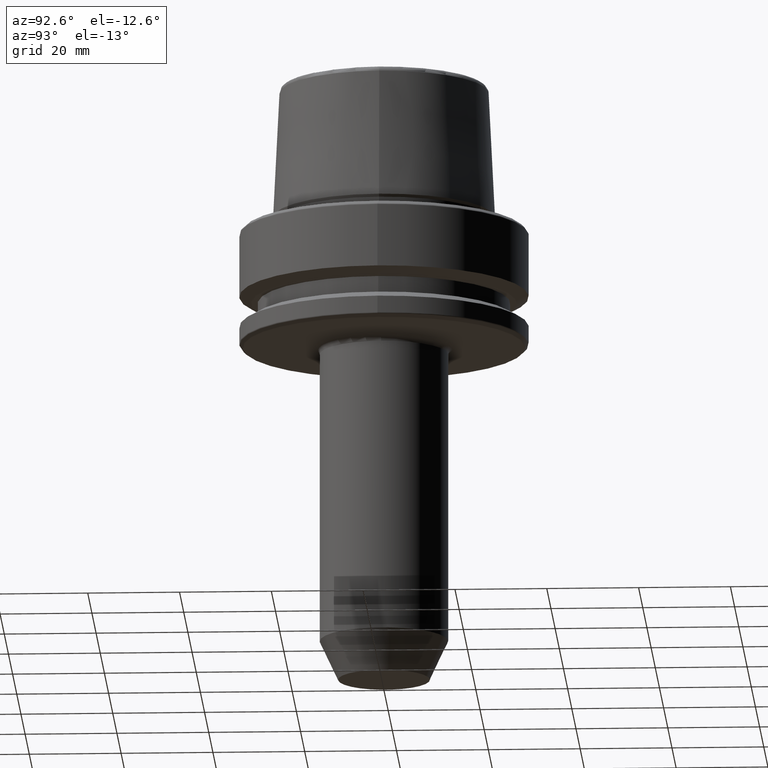
[diagram: clean part render]
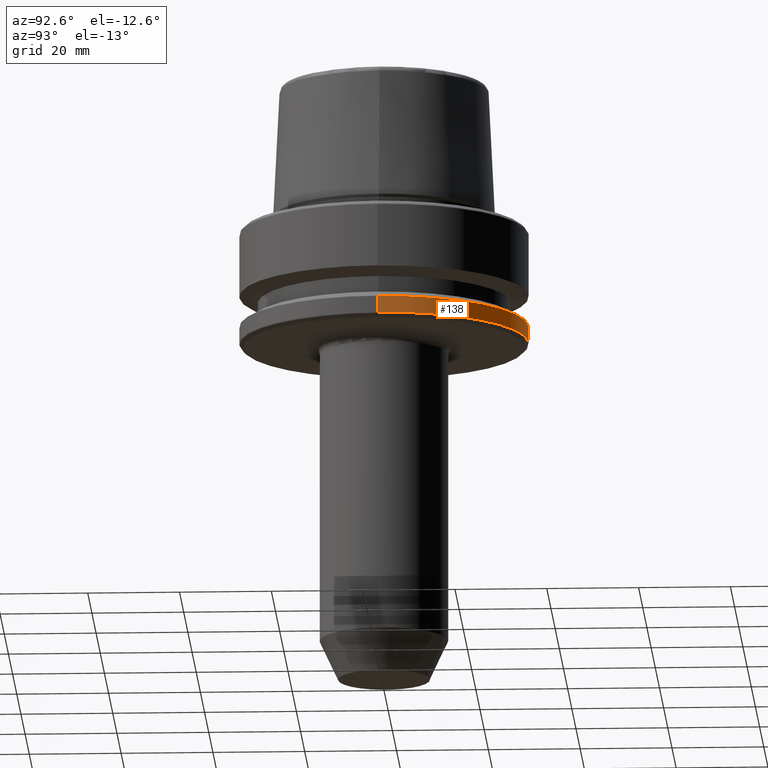
[diagram: same view with one face highlighted and labeled with its STEP entity id]
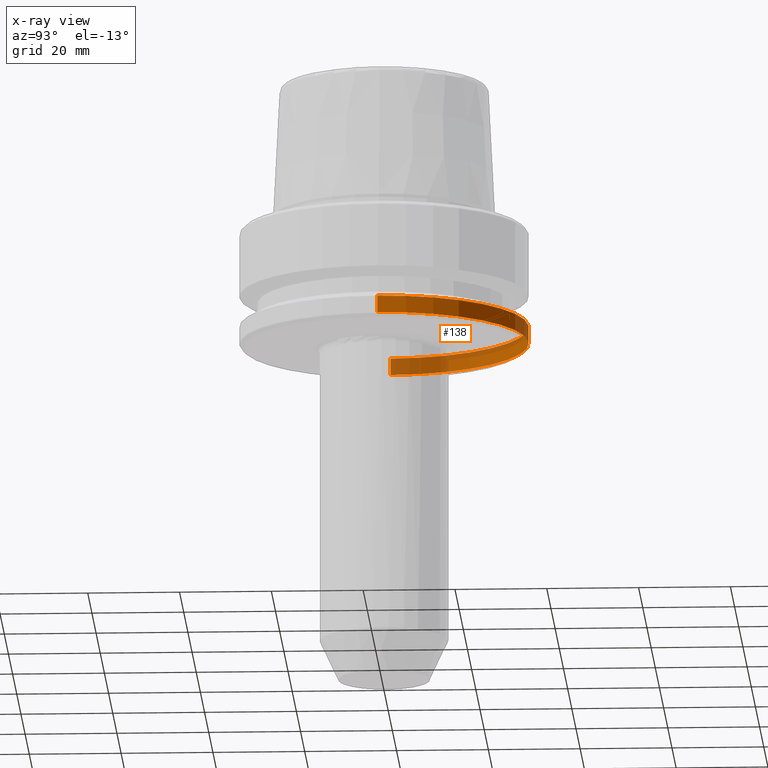
[diagram: x-ray of the same camera — body ghosted, the highlighted face saturated]
A machine part, auxiliary view. The second image highlights one B-rep face of the part: STEP entity #138.
The next image is the same camera in x-ray: the body ghosted, the highlighted face saturated — about 28% of this face is hidden behind the body in this view.
In plain terms, the highlighted cylindrical surface (partial cylindrical patch) has radius 31.5 mm, axis along (-0, -0, 1).
Its self-contained STEP definition (entity closure, byte-faithful):
#88 = CIRCLE ( 'NONE', #879, 31.50000000000000000 ) ;
#138 = ADVANCED_FACE ( 'NONE', ( #923 ), #1051, .T. ) ;
#142 = ORIENTED_EDGE ( 'NONE', *, *, #165, .T. ) ;
#165 = EDGE_CURVE ( 'NONE', #253, #335, #409, .T. ) ;
#183 = ORIENTED_EDGE ( 'NONE', *, *, #1253, .T. ) ;
#253 = VERTEX_POINT ( 'NONE', #318 ) ;
#294 = CARTESIAN_POINT ( 'NONE',  ( -31.50000000000000000, 3.857637417314162700E-015, 78.96908074195309300 ) ) ;
#299 = DIRECTION ( 'NONE',  ( -0.0000000000000000000, -0.0000000000000000000, 1.000000000000000000 ) ) ;
#318 = CARTESIAN_POINT ( 'NONE',  ( -31.50000000000000000, 3.857637417314162700E-015, -25.03431457505077200 ) ) ;
#335 = VERTEX_POINT ( 'NONE', #589 ) ;
#361 = CARTESIAN_POINT ( 'NONE',  ( 31.50000000000000000, 0.0000000000000000000, -25.03431457505077200 ) ) ;
#409 = LINE ( 'NONE', #294, #484 ) ;
#450 = LINE ( 'NONE', #837, #664 ) ;
#471 = AXIS2_PLACEMENT_3D ( 'NONE', #1042, #568, #978 ) ;
#484 = VECTOR ( 'NONE', #527, 1000.000000000000000 ) ;
#500 = DIRECTION ( 'NONE',  ( -0.0000000000000000000, -0.0000000000000000000, 1.000000000000000000 ) ) ;
#527 = DIRECTION ( 'NONE',  ( -0.0000000000000000000, -0.0000000000000000000, 1.000000000000000000 ) ) ;
#568 = DIRECTION ( 'NONE',  ( -0.0000000000000000000, -0.0000000000000000000, 1.000000000000000000 ) ) ;
#576 = EDGE_CURVE ( 'NONE', #1083, #335, #88, .T. ) ;
#589 = CARTESIAN_POINT ( 'NONE',  ( -31.50000000000000000, 0.0000000000000000000, -21.37749907475931700 ) ) ;
#664 = VECTOR ( 'NONE', #939, 1000.000000000000000 ) ;
#779 = CARTESIAN_POINT ( 'NONE',  ( 31.50000000000000000, 3.857637417314162700E-015, -21.37749907475931700 ) ) ;
#786 = CIRCLE ( 'NONE', #1250, 31.50000000000000000 ) ;
#835 = EDGE_CURVE ( 'NONE', #1030, #1083, #450, .T. ) ;
#837 = CARTESIAN_POINT ( 'NONE',  ( 31.50000000000000000, 0.0000000000000000000, 78.96908074195309300 ) ) ;
#849 = ORIENTED_EDGE ( 'NONE', *, *, #576, .F. ) ;
#869 = ORIENTED_EDGE ( 'NONE', *, *, #835, .F. ) ;
#879 = AXIS2_PLACEMENT_3D ( 'NONE', #905, #299, #1003 ) ;
#905 = CARTESIAN_POINT ( 'NONE',  ( 0.0000000000000000000, 0.0000000000000000000, -21.37749907475931700 ) ) ;
#912 = EDGE_LOOP ( 'NONE', ( #183, #142, #849, #869 ) ) ;
#923 = FACE_OUTER_BOUND ( 'NONE', #912, .T. ) ;
#939 = DIRECTION ( 'NONE',  ( -0.0000000000000000000, -0.0000000000000000000, 1.000000000000000000 ) ) ;
#978 = DIRECTION ( 'NONE',  ( 1.000000000000000000, 0.0000000000000000000, 0.0000000000000000000 ) ) ;
#1003 = DIRECTION ( 'NONE',  ( 1.000000000000000000, 0.0000000000000000000, 0.0000000000000000000 ) ) ;
#1030 = VERTEX_POINT ( 'NONE', #361 ) ;
#1042 = CARTESIAN_POINT ( 'NONE',  ( 0.0000000000000000000, 0.0000000000000000000, 78.96908074195309300 ) ) ;
#1051 = CYLINDRICAL_SURFACE ( 'NONE', #471, 31.50000000000000000 ) ;
#1083 = VERTEX_POINT ( 'NONE', #779 ) ;
#1084 = CARTESIAN_POINT ( 'NONE',  ( 0.0000000000000000000, 0.0000000000000000000, -25.03431457505077200 ) ) ;
#1174 = DIRECTION ( 'NONE',  ( 1.000000000000000000, 0.0000000000000000000, 0.0000000000000000000 ) ) ;
#1250 = AXIS2_PLACEMENT_3D ( 'NONE', #1084, #500, #1174 ) ;
#1253 = EDGE_CURVE ( 'NONE', #1030, #253, #786, .T. ) ;